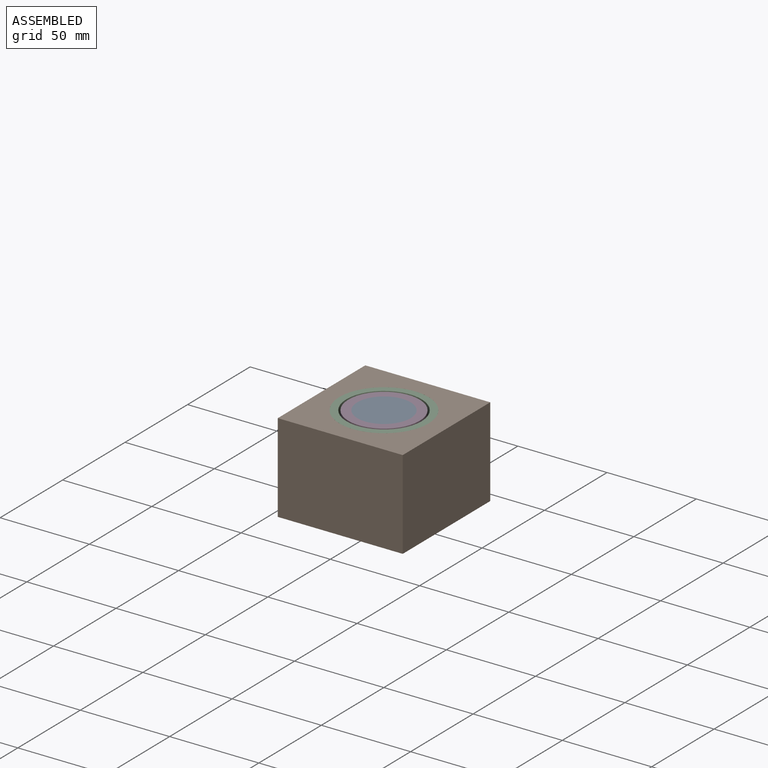
[diagram: assembled view]
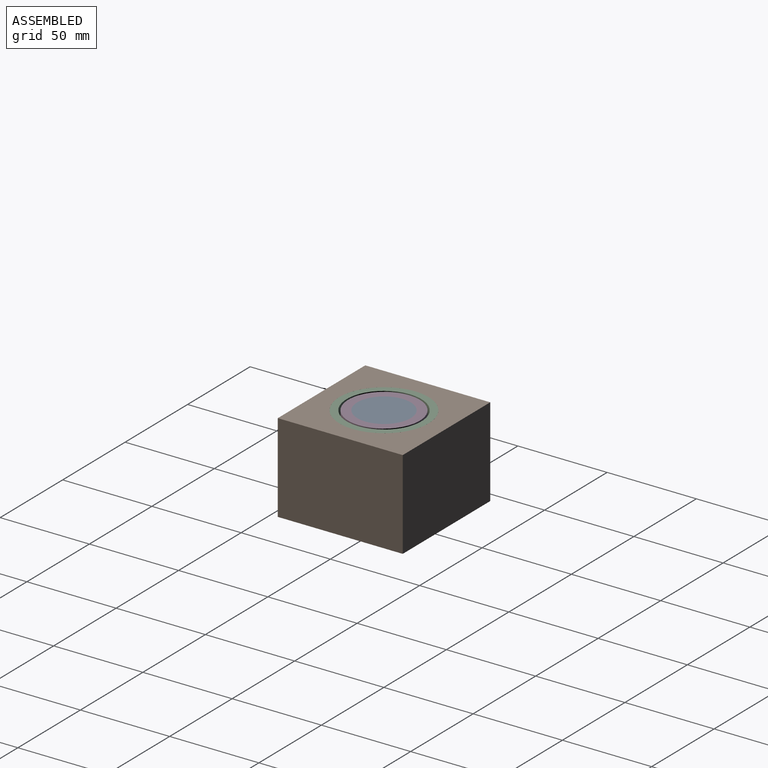
[diagram: assembled view, second angle]
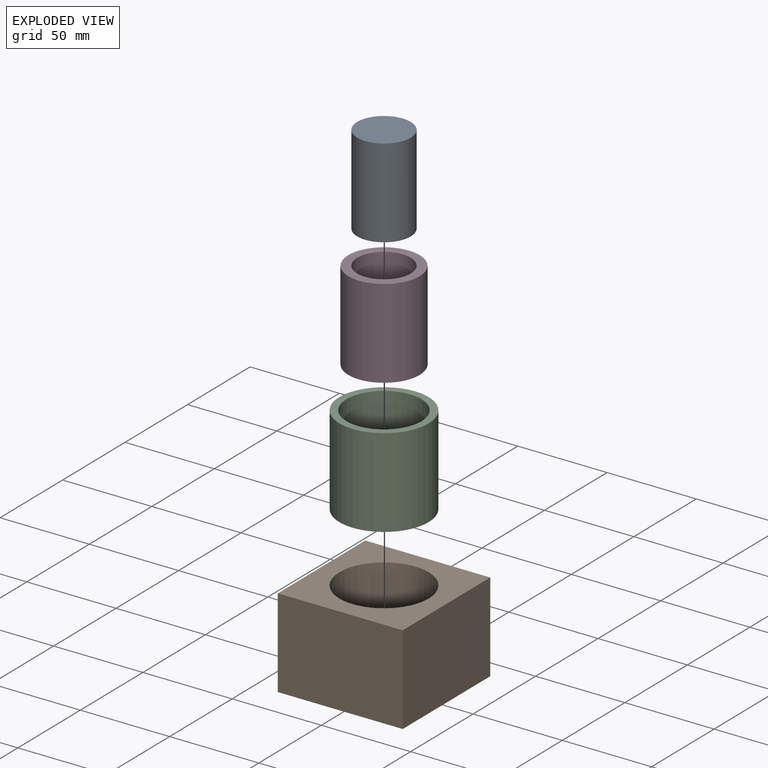
[diagram: exploded view]
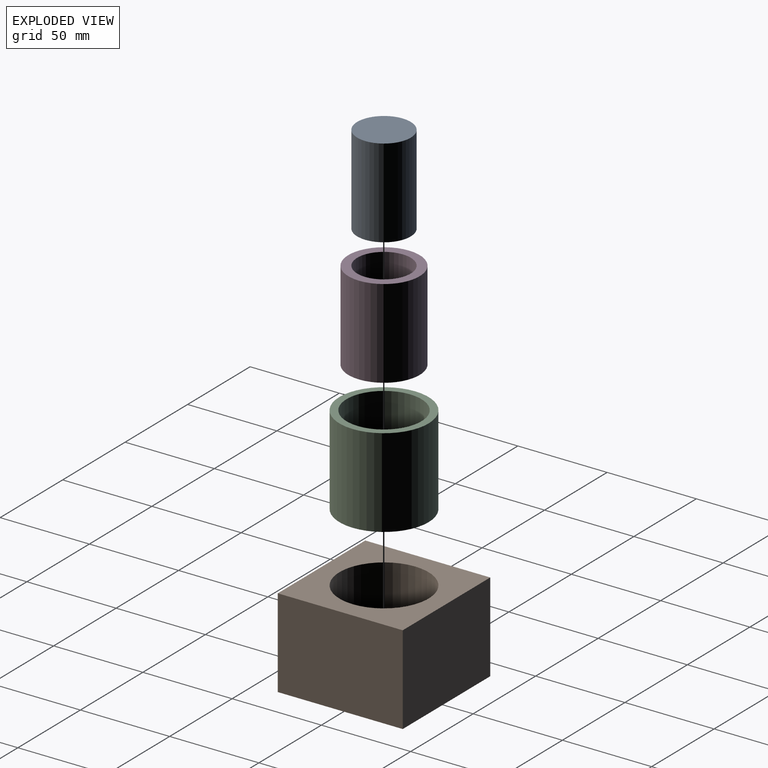
[diagram: exploded view, second angle]
ASSEMBLY  parts=4 mates=3
PART A: 3 faces, bbox 30x30x50 mm
  f0: cylinder r=15mm len=50mm, axis (0,0,-1), area 4712.4mm2, adj f1,f2
  f1: plane 30x30mm, normal (0,0,1), area 706.9mm2, adj f0
  f2: plane 30x30mm, normal (0,0,-1), area 706.9mm2, adj f0
PART B: 7 faces, bbox 70x70x50 mm
  f0: plane 70x50mm, normal (1,0,0), area 3500mm2, adj f1,f3,f5,f6
  f1: plane 70x50mm, normal (0,1,0), area 3500mm2, adj f0,f2,f5,f6
  f2: plane 70x50mm, normal (-1,0,0), area 3500mm2, adj f1,f3,f5,f6
  f3: plane 70x50mm, normal (0,-1,0), area 3500mm2, adj f0,f2,f5,f6
  f4: cylinder r=25mm len=50mm, axis (0,0,-1), area 7854mm2, adj f5,f6
  f5: plane 70x70mm, normal (0,0,1), area 2936.5mm2, adj f0,f1,f2,f3,f4
  f6: plane 70x70mm, normal (0,0,-1), area 2936.5mm2, adj f0,f1,f2,f3,f4
PART C: 4 faces, bbox 50x50x50 mm
  f0: cylinder r=21mm len=50mm, axis (0,0,-1), area 6597.3mm2, adj f2,f3
  f1: cylinder r=25mm len=50mm, axis (0,0,-1), area 7854mm2, adj f2,f3
  f2: plane 50x50mm, normal (0,0,1), area 578.1mm2, adj f0,f1
  f3: plane 50x50mm, normal (0,0,-1), area 578.1mm2, adj f0,f1
PART D: 4 faces, bbox 40x40x50 mm
  f0: cylinder r=15mm len=50mm, axis (0,0,-1), area 4712.4mm2, adj f2,f3
  f1: cylinder r=20mm len=50mm, axis (0,0,-1), area 6283.2mm2, adj f2,f3
  f2: plane 40x40mm, normal (0,0,1), area 549.8mm2, adj f0,f1
  f3: plane 40x40mm, normal (0,0,-1), area 549.8mm2, adj f0,f1
PLACE A t=(0.03,0.11,-24.86)mm
PLACE B t=(0.03,0.11,-24.86)mm
PLACE C t=(0.03,0.11,-24.86)mm
PLACE D t=(0.03,0.11,-24.86)mm
MATE cylindrical C.f1 <-> B.f4  axis (0,0,1) through (0.03,0.11,25.14)mm
MATE cylindrical D.f1 <-> C.f1  axis (0,0,1) through (0.03,0.11,25.14)mm
MATE cylindrical A.f0 <-> D.f1  axis (0,0,1) through (0.03,0.11,25.14)mm
